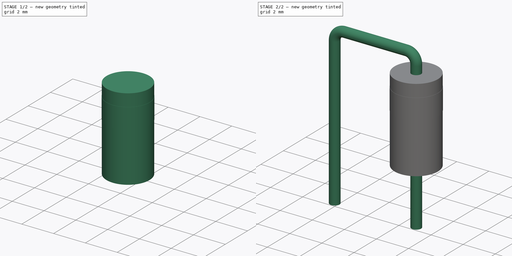
[diagram: build sequence overview — one tinted view per stage of 2, left to right]
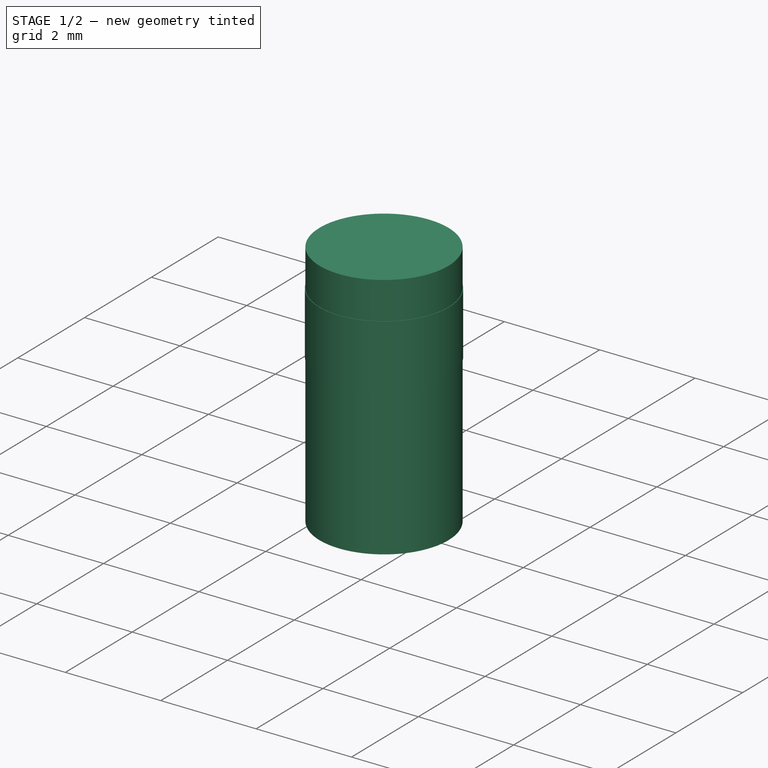
[diagram: stage 1 of 2 — iso view after this stage's code; geometry added in this stage tinted green]
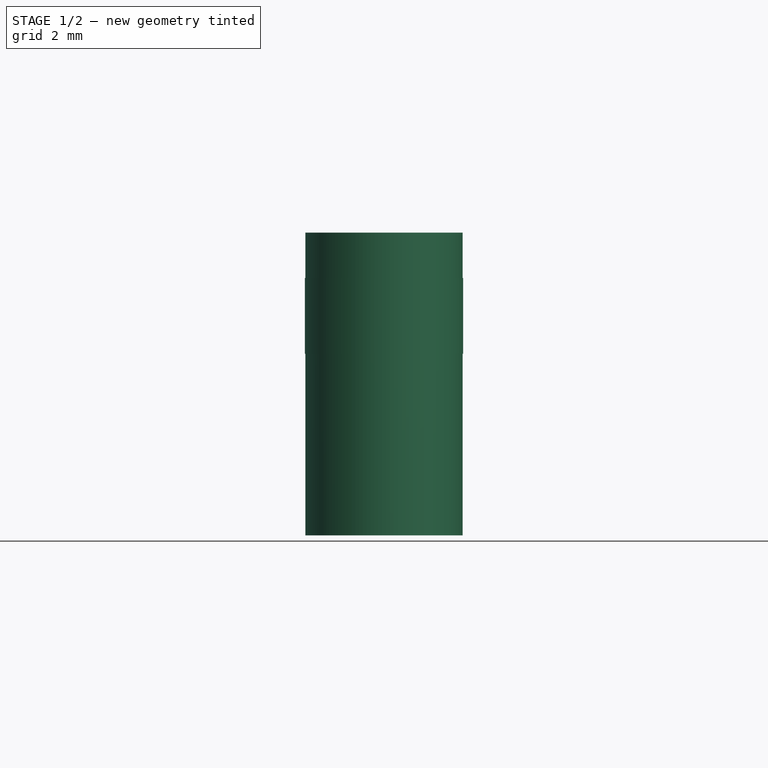
[diagram: stage 1 of 2 — front view after this stage's code; geometry added in this stage tinted green]
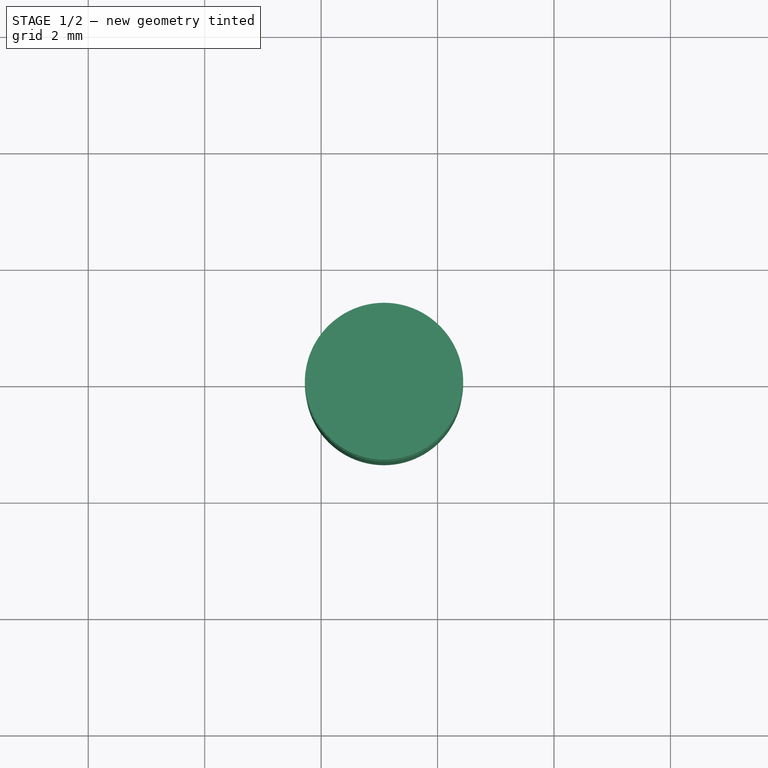
[diagram: stage 1 of 2 — top view after this stage's code; geometry added in this stage tinted green]
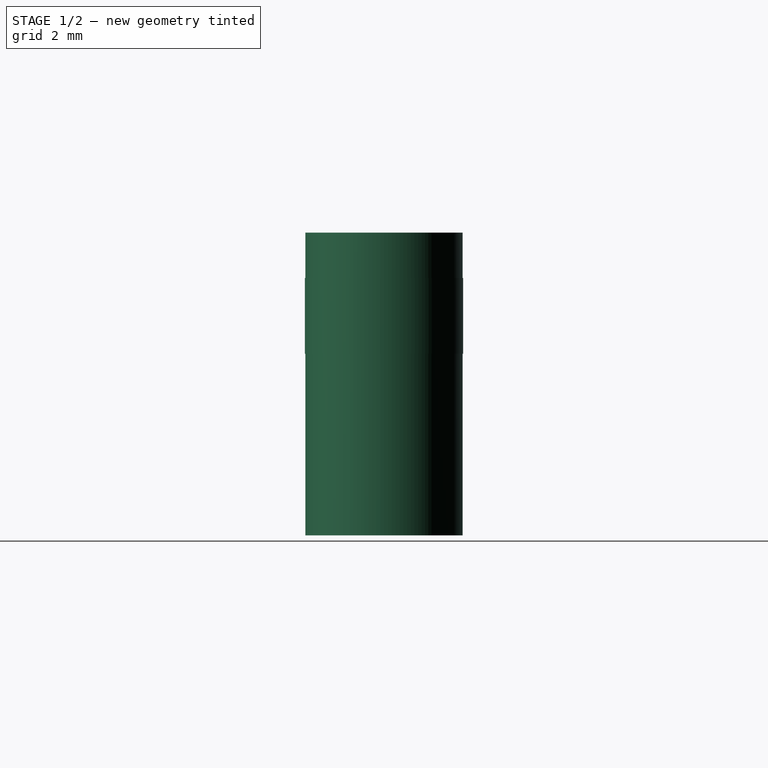
[diagram: stage 1 of 2 — right view after this stage's code; geometry added in this stage tinted green]
FCSTD DOCUMENT  (FreeCAD 0.17R12018 (Git))
Label: D_A-405_P5.08mm_Vertical_KathodeUp
License: All rights reserved
LicenseURL: http://en.wikipedia.org/wiki/All_rights_reserved
objects: Sketcher::SketchObject×4, PartDesign::Revolution×2, Spreadsheet::Sheet×1, Part::Sweep×1, Part::MultiFuse×1, Part::Feature×1
note: 11 computed .brp shape members not serialized (recipe doc carries the construction recipe); baked Part::Feature solids carry a one-line shape summary decoded from their .brp

FEATURE [Sketcher::SketchObject] Sketch002
  MapMode = 5
  Placement = pos=(0,0,0) rot=(1,0,0;1.5708rad)
  expr: Constraints[13] = Spreadsheet.RM
  expr: Constraints[9] = Spreadsheet.L
  expr: Constraints[10] = Spreadsheet.d / 2
  sketch-geometry (5):
    g0: LineSegment StartX=5.08 StartY=5.7 StartZ=0 EndX=6.43 EndY=5.7 EndZ=0
    g1: LineSegment StartX=6.43 StartY=5.7 StartZ=0 EndX=6.43 EndY=0.5 EndZ=0
    g2: LineSegment StartX=6.43 StartY=0.5 StartZ=0 EndX=5.08 EndY=0.5 EndZ=0
    g3: LineSegment StartX=5.08 StartY=0.5 StartZ=0 EndX=5.08 EndY=5.7 EndZ=0
    g4: LineSegment [constr] StartX=5.08 StartY=0.5 StartZ=0 EndX=5.08 EndY=11.9134 EndZ=0
  constraints (15):
    c: Coincident(g0,g1)
    c: Coincident(g1,g2)
    c: Coincident(g2,g3)
    c: Coincident(g3,g0)
    c: Horizontal(g0)
    c: Horizontal(g2)
    c: Vertical(g1)
    c: Vertical(g3)
    c: DistanceY(g-1,g2) = 0.5
    c: DistanceY(g1,g1) = 5.2
    c: DistanceX(g0,g0) = 1.35
    c: PointOnObject(g4,g3)
    c: Vertical(g4)
    c: DistanceX(g-1,g4) = 5.08
    c: Coincident(g4,g2)
FEATURE [PartDesign::Revolution] Revolution
  Angle = 360
  Axis = (0,0,11.4134)
  Base = (5.08,0,0.5)
  Placement = pos=(0,0,0) rot=(1,0,0;1.5708rad)
  Profile = -> Sketch002
  ReferenceAxis = -> Sketch002 [Axis0]
  Reversed = true
FEATURE [Sketcher::SketchObject] Sketch003
  MapMode = 5
  Placement = pos=(0,0,0) rot=(1,0,0;1.5708rad)
  expr: Constraints[13] = Spreadsheet.RM
  expr: Constraints[8] = 0.5 + (1 - 0.14999999999999999) * Spreadsheet.L - 0.25 * Spreadsheet.L
  expr: Constraints[9] = Spreadsheet.L * 0.25
  expr: Constraints[10] = Spreadsheet.d / 2 + 0.01
  sketch-geometry (5):
    g0: LineSegment StartX=5.08 StartY=4.92 StartZ=0 EndX=6.44 EndY=4.92 EndZ=0
    g1: LineSegment StartX=6.44 StartY=4.92 StartZ=0 EndX=6.44 EndY=3.62 EndZ=0
    g2: LineSegment StartX=6.44 StartY=3.62 StartZ=0 EndX=5.08 EndY=3.62 EndZ=0
    g3: LineSegment StartX=5.08 StartY=3.62 StartZ=0 EndX=5.08 EndY=4.92 EndZ=0
    g4: LineSegment [constr] StartX=5.08 StartY=3.62 StartZ=0 EndX=5.08 EndY=11.9134 EndZ=0
  constraints (15):
    c: Coincident(g0,g1)
    c: Coincident(g1,g2)
    c: Coincident(g2,g3)
    c: Coincident(g3,g0)
    c: Horizontal(g0)
    c: Horizontal(g2)
    c: Vertical(g1)
    c: Vertical(g3)
    c: DistanceY(g-1,g2) = 3.62
    c: DistanceY(g1,g1) = 1.3
    c: DistanceX(g0,g0) = 1.36
    c: PointOnObject(g4,g3)
    c: Vertical(g4)
    c: DistanceX(g-1,g4) = 5.08
    c: Coincident(g4,g2)
FEATURE [PartDesign::Revolution] Revolution001
  Angle = 360
  Axis = (0,0,8.29339)
  Base = (5.08,0,3.62)
  Placement = pos=(0,0,0) rot=(1,0,0;1.5708rad)
  Profile = -> Sketch003
  ReferenceAxis = -> Sketch003 [Axis0]
  Reversed = true
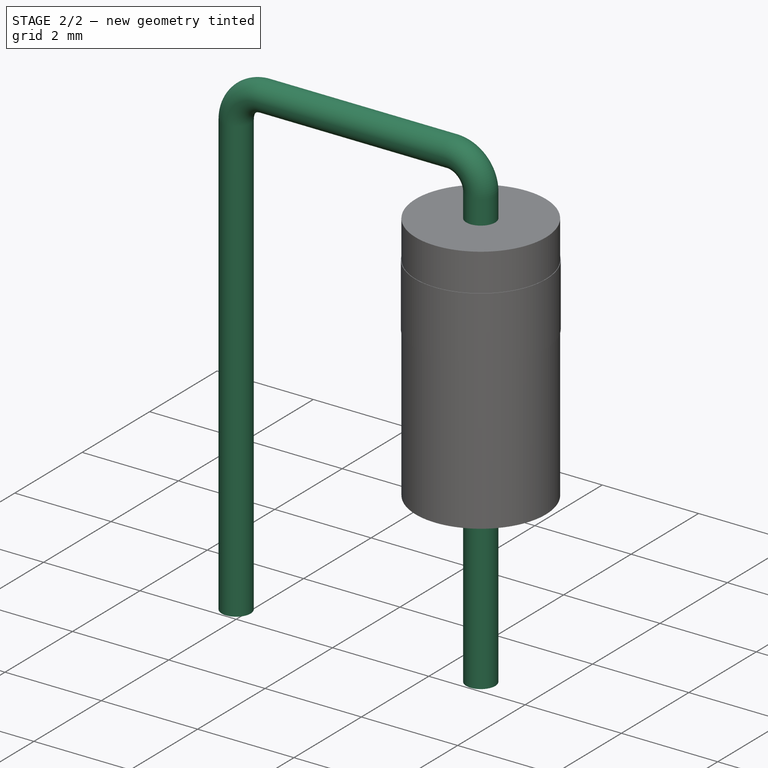
[diagram: stage 2 of 2 — iso view after this stage's code; geometry added in this stage tinted green]
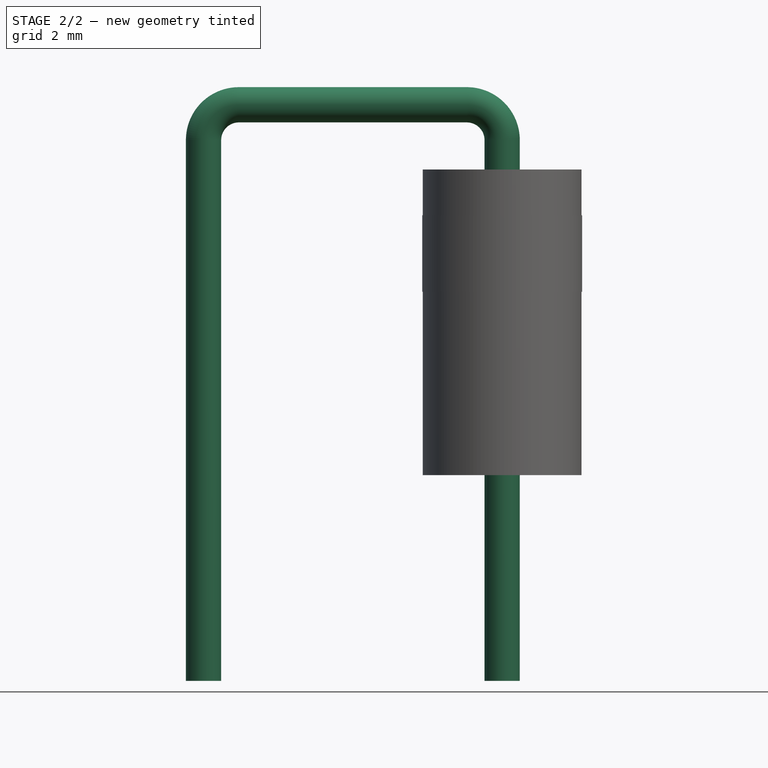
[diagram: stage 2 of 2 — front view after this stage's code; geometry added in this stage tinted green]
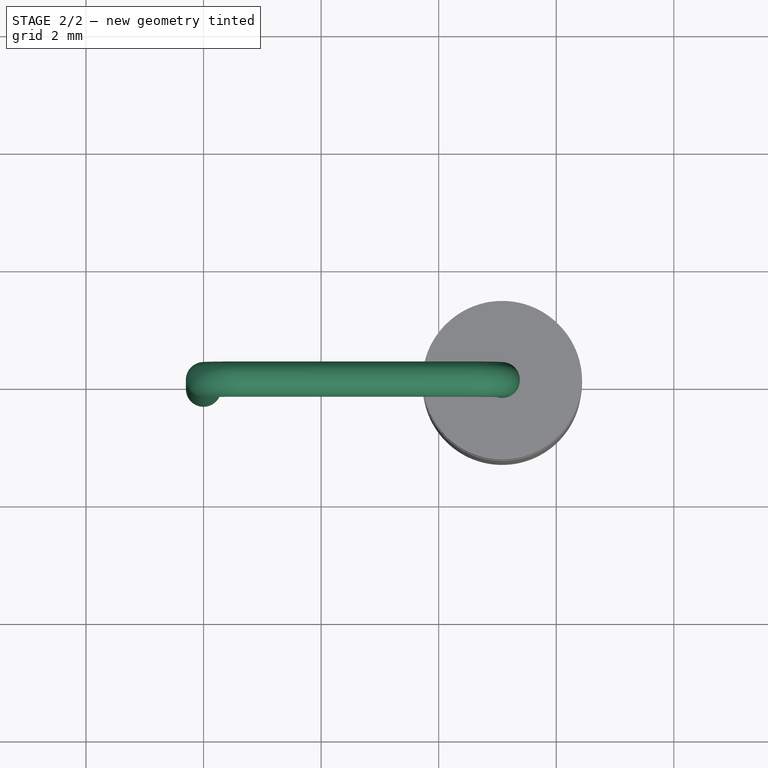
[diagram: stage 2 of 2 — top view after this stage's code; geometry added in this stage tinted green]
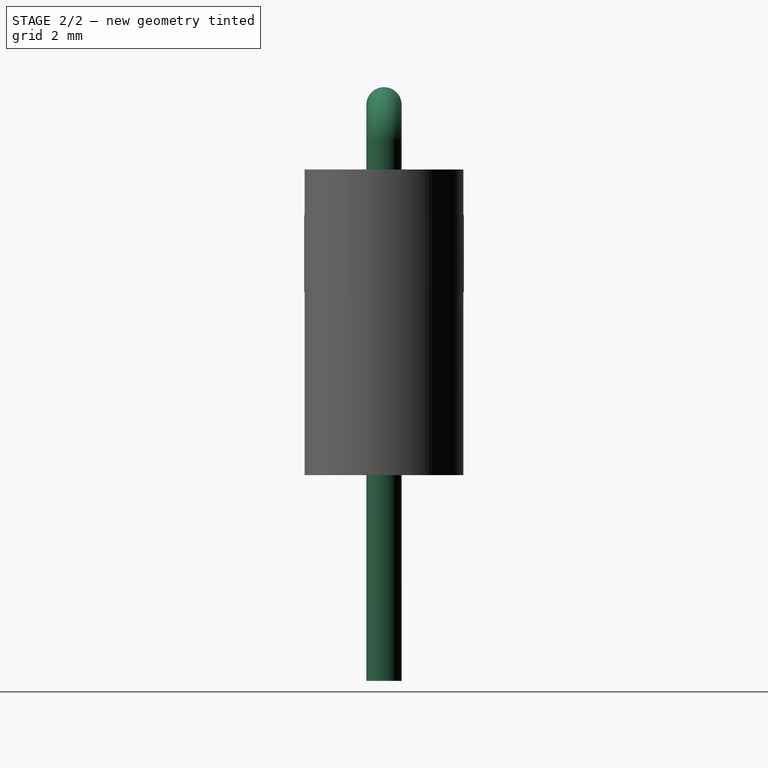
[diagram: stage 2 of 2 — right view after this stage's code; geometry added in this stage tinted green]
FEATURE [Spreadsheet::Sheet] Spreadsheet
  cells = A1=L; B1(L)=5.2000000000000002; A2=d; B2(d)=2.7000000000000002; C2(d2)=0; A3=RM; B3(RM)=5.0800000000000001; A4=d_wire; B4(d_wire)=0.60000000000000009
FEATURE [Sketcher::SketchObject] Sketch
  MapMode = 5
  Placement = pos=(0,0,0) rot=(1,0,0;1.5708rad)
  expr: Constraints[7] = Spreadsheet.RM
  expr: Constraints[17] = Spreadsheet.d_wire * 1
  expr: Constraints[5] = Spreadsheet.L + 1
  sketch-geometry (5):
    g0: LineSegment StartX=0 StartY=-3 StartZ=0 EndX=0 EndY=6.2 EndZ=0
    g1: LineSegment StartX=5.08 StartY=-3 StartZ=0 EndX=5.08 EndY=6.2 EndZ=0
    g2: ArcOfCircle CenterX=0.6 CenterY=6.2 CenterZ=0 NormalX=0 NormalY=0 NormalZ=1 Radius=0.6 StartAngle=1.5708 EndAngle=3.14159
    g3: ArcOfCircle CenterX=4.48 CenterY=6.2 CenterZ=0 NormalX=0 NormalY=0 NormalZ=1 Radius=0.6 StartAngle=0 EndAngle=1.5708
    g4: LineSegment StartX=0.6 StartY=6.8 StartZ=0 EndX=4.48 EndY=6.8 EndZ=0
  constraints (18):
    c: PointOnObject(g0,g-2)
    c: PointOnObject(g0,g-2)
    c: Vertical(g1)
    c: DistanceY(g0,g1) = 0
    c: DistanceY(g0,g-1) = 3
    c: DistanceY(g-1,g0) = 6.2
    c: DistanceY(g1,g0) = 0
    c: DistanceX(g0,g1) = 5.08
    c: Coincident(g2,g0)
    c: Coincident(g3,g1)
    c: Coincident(g4,g2)
    c: Coincident(g4,g3)
    c: Horizontal(g4)
    c: DistanceY(g0,g2) = 0
    c: DistanceY(g3,g1) = 0
    c: DistanceX(g2,g2) = 0
    c: DistanceX(g3,g3) = 0
    c: DistanceX(g0,g2) = 0.6
FEATURE [Sketcher::SketchObject] Sketch001
  MapMode = 5
  expr: Constraints[1] = Spreadsheet.d_wire / 2
  sketch-geometry (1):
    g0: Circle CenterX=0 CenterY=0 CenterZ=0 NormalX=0 NormalY=0 NormalZ=1 Radius=0.3
  constraints (2):
    c: Coincident(g0,g-1)
    c: Radius(g0) = 0.3
FEATURE [Part::Sweep] Sweep
  Frenet = false
  Sections = -> [Sketch001]
  Solid = true
  Spine = -> Sketch [Edge1,Edge2,Edge3,Edge4,Edge5]
  Transition = 1
FEATURE [Part::MultiFuse] Revolution_mp_cp  label="Revolution_fd"
  Shapes = -> [Revolution,Sweep,Revolution001]
FEATURE [Part::Feature] Revolution_fd_cp  label="D_A-405_P5.08mm_Vertical_KathodeUp"
  shape: bbox 6.814 x 2.72 x 10.17 mm, 15 faces (baked)
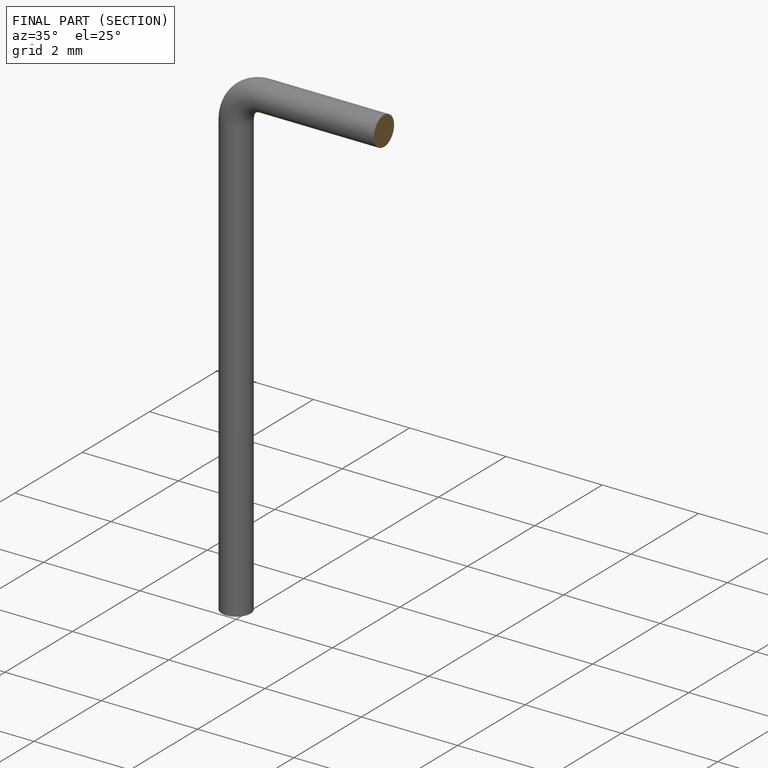
[diagram: finished part — half-section view (interior)]
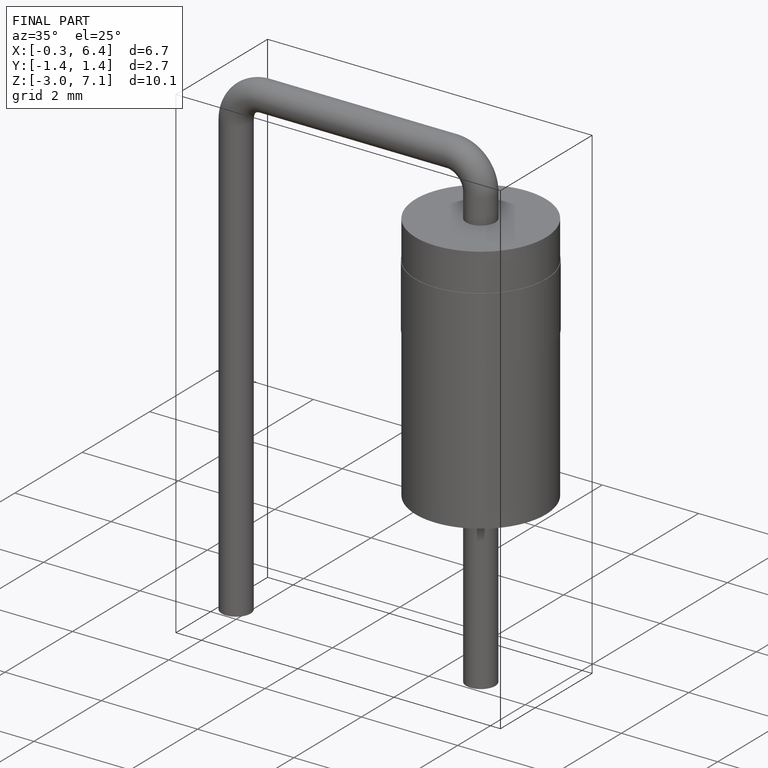
[diagram: finished part — iso view with bounding-box wireframe]
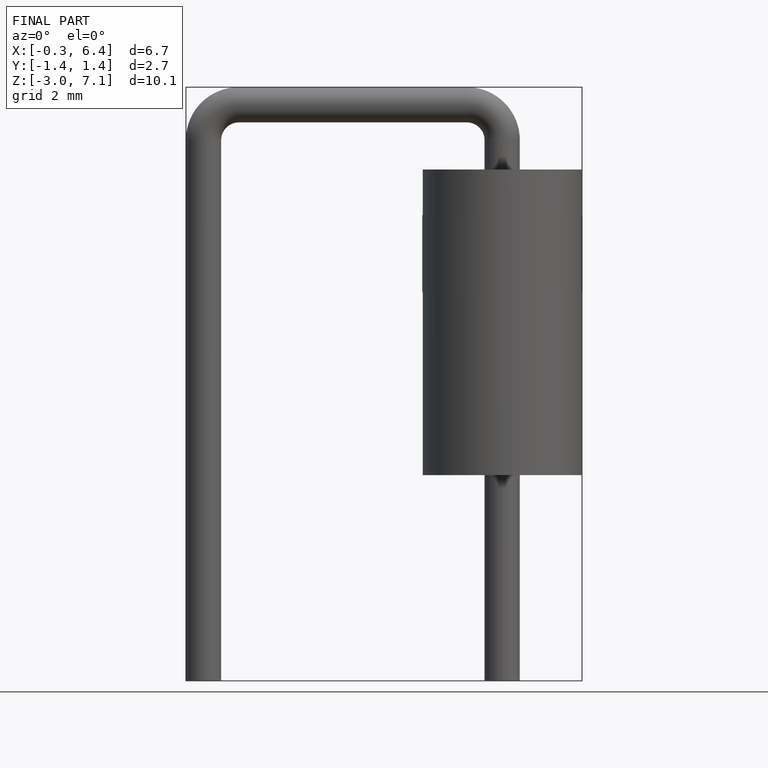
[diagram: finished part — front view with bounding-box wireframe]
